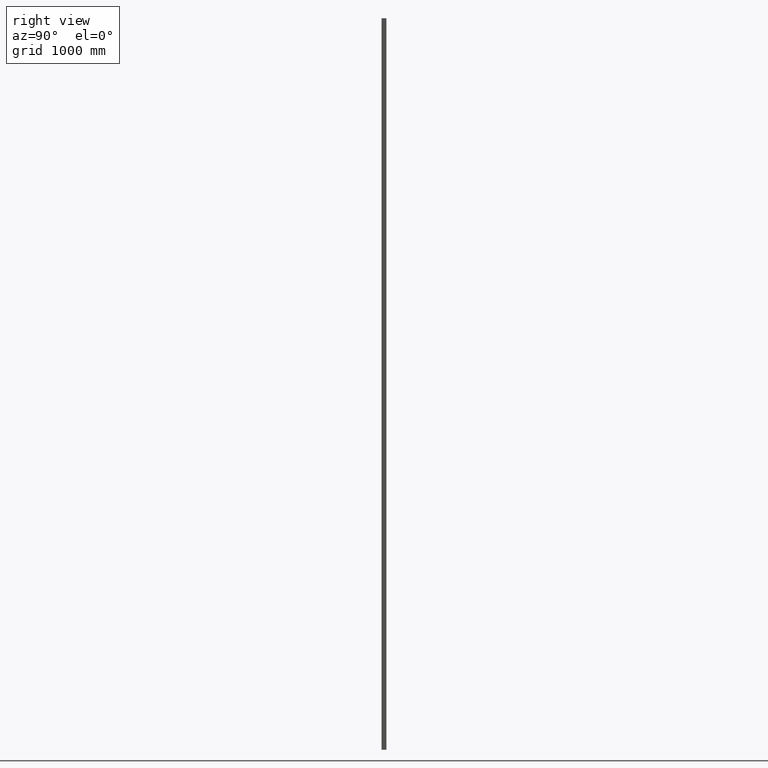
[diagram: clean part render]
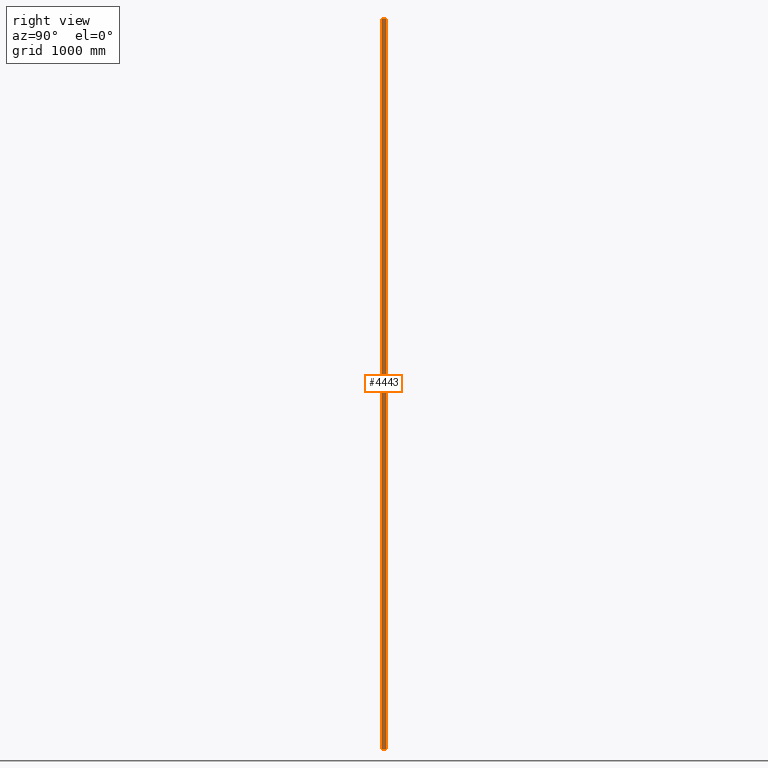
[diagram: same view with one face highlighted and labeled with its STEP entity id]
A machine part, right view. The second image highlights one B-rep face of the part: STEP entity #4443.
In plain terms, the highlighted planar face has unit normal (-1, -0, 0).
Its self-contained STEP definition (entity closure, byte-faithful):
#79 = CARTESIAN_POINT ( 'NONE',  ( 20.00000000000000000, 17.00000000000000000, 3000.000000000000000 ) ) ;
#106 = CARTESIAN_POINT ( 'NONE',  ( 20.00000000000000000, 17.00000000000000000, 3000.000000000000000 ) ) ;
#267 = ORIENTED_EDGE ( 'NONE', *, *, #748, .F. ) ;
#748 = EDGE_CURVE ( 'NONE', #815, #3110, #8385, .T. ) ;
#815 = VERTEX_POINT ( 'NONE', #106 ) ;
#1312 = CARTESIAN_POINT ( 'NONE',  ( 20.00000000000000355, -17.00000000000000000, 3000.000000000000000 ) ) ;
#1403 = LINE ( 'NONE', #1312, #13577 ) ;
#1978 = CARTESIAN_POINT ( 'NONE',  ( 20.00000000000000000, 17.00000000000000000, -3000.000000000000000 ) ) ;
#3059 = PLANE ( 'NONE',  #12238 ) ;
#3110 = VERTEX_POINT ( 'NONE', #12096 ) ;
#3169 = CARTESIAN_POINT ( 'NONE',  ( 20.00000000000000000, 17.00000000000000000, 3000.000000000000000 ) ) ;
#4443 = ADVANCED_FACE ( 'NONE', ( #8318 ), #3059, .F. ) ;
#4448 = LINE ( 'NONE', #79, #12878 ) ;
#5424 = VECTOR ( 'NONE', #6856, 1000.000000000000000 ) ;
#5497 = VERTEX_POINT ( 'NONE', #10528 ) ;
#5726 = DIRECTION ( 'NONE',  ( -1.020425574104004122E-16, 1.000000000000000000, -0.000000000000000000 ) ) ;
#6219 = EDGE_CURVE ( 'NONE', #6961, #3110, #13078, .T. ) ;
#6290 = ORIENTED_EDGE ( 'NONE', *, *, #6219, .T. ) ;
#6424 = CARTESIAN_POINT ( 'NONE',  ( 20.00000000000000000, 17.00000000000000000, 3000.000000000000000 ) ) ;
#6856 = DIRECTION ( 'NONE',  ( -0.000000000000000000, -0.000000000000000000, -1.000000000000000000 ) ) ;
#6961 = VERTEX_POINT ( 'NONE', #11522 ) ;
#7528 = DIRECTION ( 'NONE',  ( 1.020425574104004122E-16, -1.000000000000000000, 0.000000000000000000 ) ) ;
#8318 = FACE_OUTER_BOUND ( 'NONE', #8623, .T. ) ;
#8385 = LINE ( 'NONE', #3169, #5424 ) ;
#8539 = ORIENTED_EDGE ( 'NONE', *, *, #11338, .T. ) ;
#8623 = EDGE_LOOP ( 'NONE', ( #6290, #267, #12954, #8539 ) ) ;
#8971 = VECTOR ( 'NONE', #10813, 1000.000000000000000 ) ;
#9094 = DIRECTION ( 'NONE',  ( -0.000000000000000000, -0.000000000000000000, -1.000000000000000000 ) ) ;
#10528 = CARTESIAN_POINT ( 'NONE',  ( 20.00000000000000355, -17.00000000000000000, 3000.000000000000000 ) ) ;
#10813 = DIRECTION ( 'NONE',  ( -1.020425574104004122E-16, 1.000000000000000000, -0.000000000000000000 ) ) ;
#11338 = EDGE_CURVE ( 'NONE', #5497, #6961, #1403, .T. ) ;
#11522 = CARTESIAN_POINT ( 'NONE',  ( 20.00000000000000355, -17.00000000000000000, -3000.000000000000000 ) ) ;
#11926 = DIRECTION ( 'NONE',  ( -1.000000000000000000, -1.020425574104004122E-16, 0.000000000000000000 ) ) ;
#12096 = CARTESIAN_POINT ( 'NONE',  ( 20.00000000000000000, 17.00000000000000000, -3000.000000000000000 ) ) ;
#12238 = AXIS2_PLACEMENT_3D ( 'NONE', #6424, #11926, #7528 ) ;
#12878 = VECTOR ( 'NONE', #5726, 1000.000000000000000 ) ;
#12954 = ORIENTED_EDGE ( 'NONE', *, *, #13855, .F. ) ;
#13078 = LINE ( 'NONE', #1978, #8971 ) ;
#13577 = VECTOR ( 'NONE', #9094, 1000.000000000000000 ) ;
#13855 = EDGE_CURVE ( 'NONE', #5497, #815, #4448, .T. ) ;